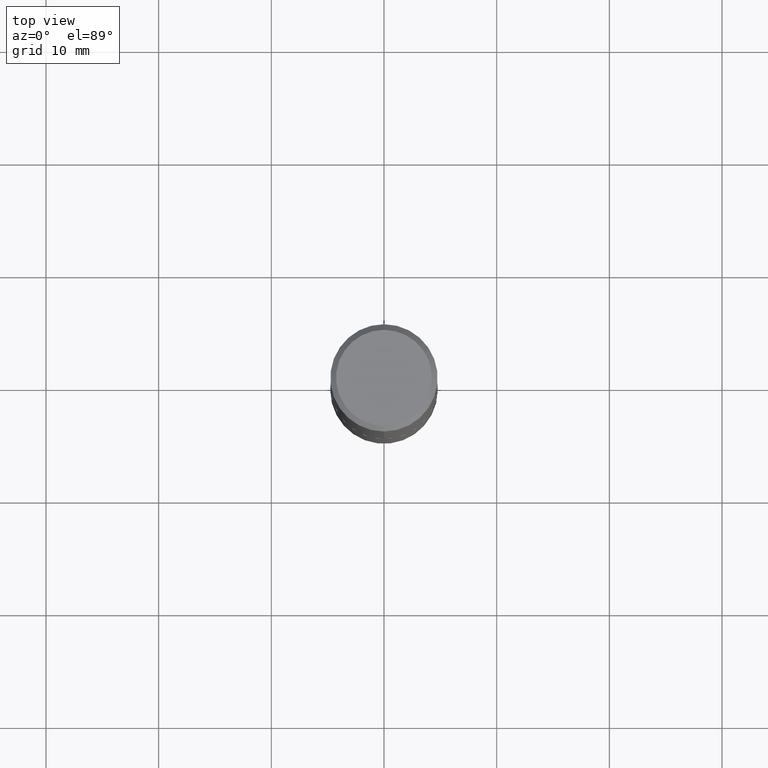
[diagram: clean part render]
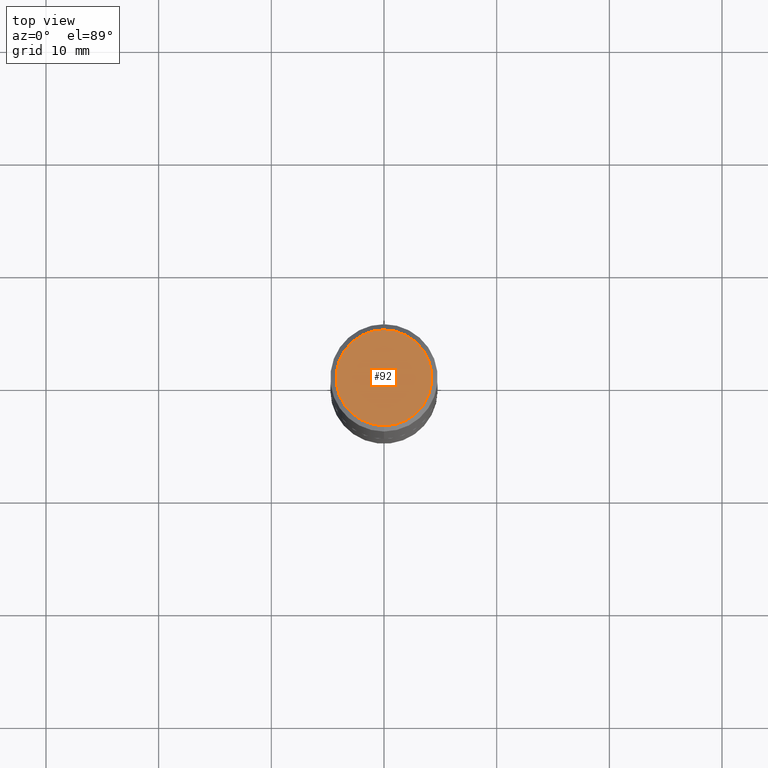
[diagram: same view with one face highlighted and labeled with its STEP entity id]
A machine part, top view. The second image highlights one B-rep face of the part: STEP entity #92.
In plain terms, the highlighted planar face has unit normal (0, -0, -1).
Its self-contained STEP definition (entity closure, byte-faithful):
#4 = EDGE_CURVE ( 'NONE', #311, #215, #394, .T. ) ;
#9 = EDGE_LOOP ( 'NONE', ( #70, #273 ) ) ;
#13 = CARTESIAN_POINT ( 'NONE',  ( -1.217738394604445850E-15, -0.1674999999999998435, 7.084849479045783825E-16 ) ) ;
#42 = PLANE ( 'NONE',  #229 ) ;
#60 = CARTESIAN_POINT ( 'NONE',  ( 1.239475875289311907E-15, 0.1674999999999998435, -4.610362620433143958E-16 ) ) ;
#69 = DIRECTION ( 'NONE',  ( 6.982962677686265922E-15, 1.000000000000000000, -3.491108089396698105E-15 ) ) ;
#70 = ORIENTED_EDGE ( 'NONE', *, *, #4, .T. ) ;
#74 = DIRECTION ( 'NONE',  ( 2.445729444880537198E-29, -3.491108089396698105E-15, -1.000000000000000000 ) ) ;
#92 = ADVANCED_FACE ( 'NONE', ( #327 ), #42, .F. ) ;
#124 = DIRECTION ( 'NONE',  ( -6.982962677686266711E-15, -1.000000000000000000, 3.491108089396698499E-15 ) ) ;
#131 = CIRCLE ( 'NONE', #320, 0.1674999999999998435 ) ;
#215 = VERTEX_POINT ( 'NONE', #13 ) ;
#217 = AXIS2_PLACEMENT_3D ( 'NONE', #278, #409, #124 ) ;
#229 = AXIS2_PLACEMENT_3D ( 'NONE', #266, #74, #69 ) ;
#266 = CARTESIAN_POINT ( 'NONE',  ( 1.169646248512448609E-15, 0.1674999999999998435, -5.228984335086304171E-16 ) ) ;
#272 = CARTESIAN_POINT ( 'NONE',  ( -3.025962685539437692E-45, 4.319350544604203888E-31, 1.237243429306319441E-16 ) ) ;
#273 = ORIENTED_EDGE ( 'NONE', *, *, #359, .T. ) ;
#278 = CARTESIAN_POINT ( 'NONE',  ( -3.025962685539437692E-45, 4.319350544604203888E-31, 1.237243429306319441E-16 ) ) ;
#311 = VERTEX_POINT ( 'NONE', #60 ) ;
#317 = DIRECTION ( 'NONE',  ( -2.445729444880537759E-29, 3.491108089396698105E-15, 1.000000000000000000 ) ) ;
#320 = AXIS2_PLACEMENT_3D ( 'NONE', #272, #317, #373 ) ;
#327 = FACE_OUTER_BOUND ( 'NONE', #9, .T. ) ;
#359 = EDGE_CURVE ( 'NONE', #215, #311, #131, .T. ) ;
#373 = DIRECTION ( 'NONE',  ( -6.982962677686266711E-15, -1.000000000000000000, 3.491108089396698499E-15 ) ) ;
#394 = CIRCLE ( 'NONE', #217, 0.1674999999999998435 ) ;
#409 = DIRECTION ( 'NONE',  ( -2.445729444880537759E-29, 3.491108089396698105E-15, 1.000000000000000000 ) ) ;